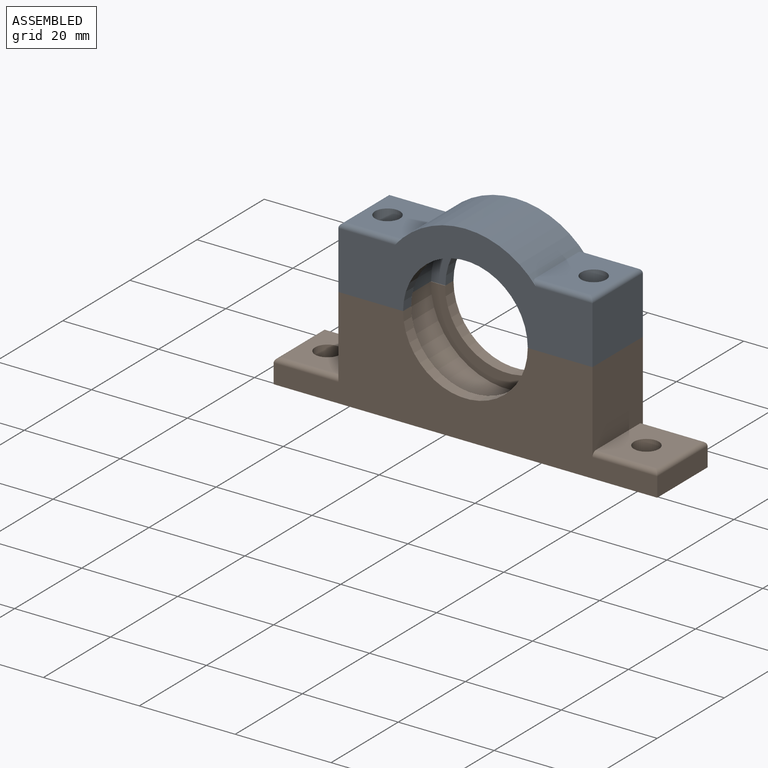
[diagram: assembled view]
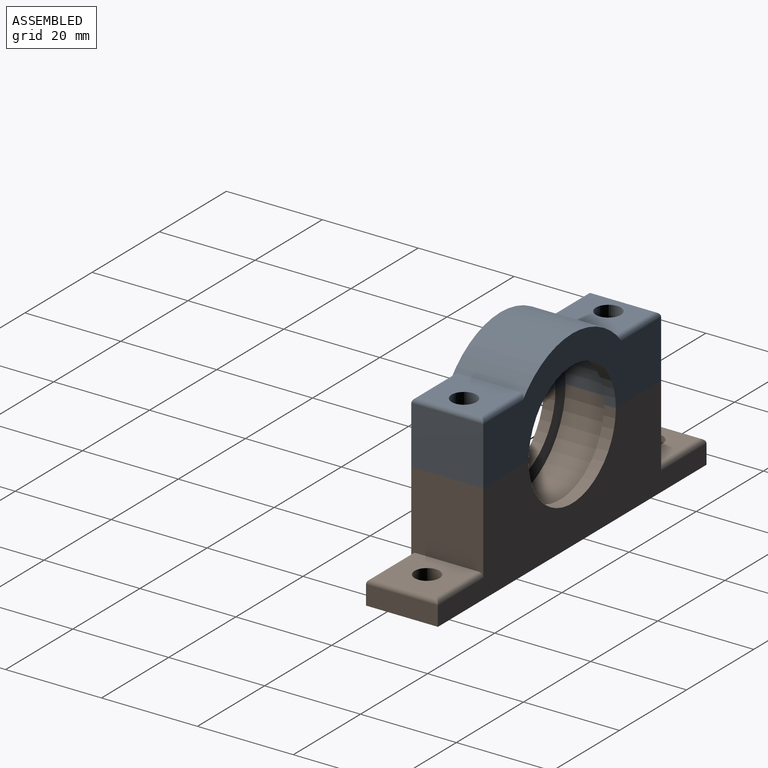
[diagram: assembled view, second angle]
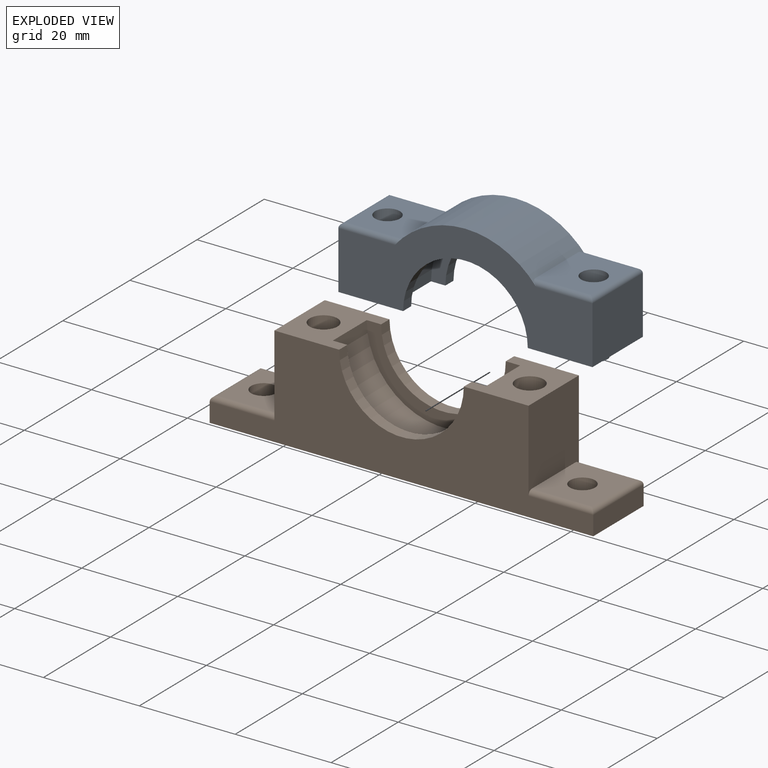
[diagram: exploded view]
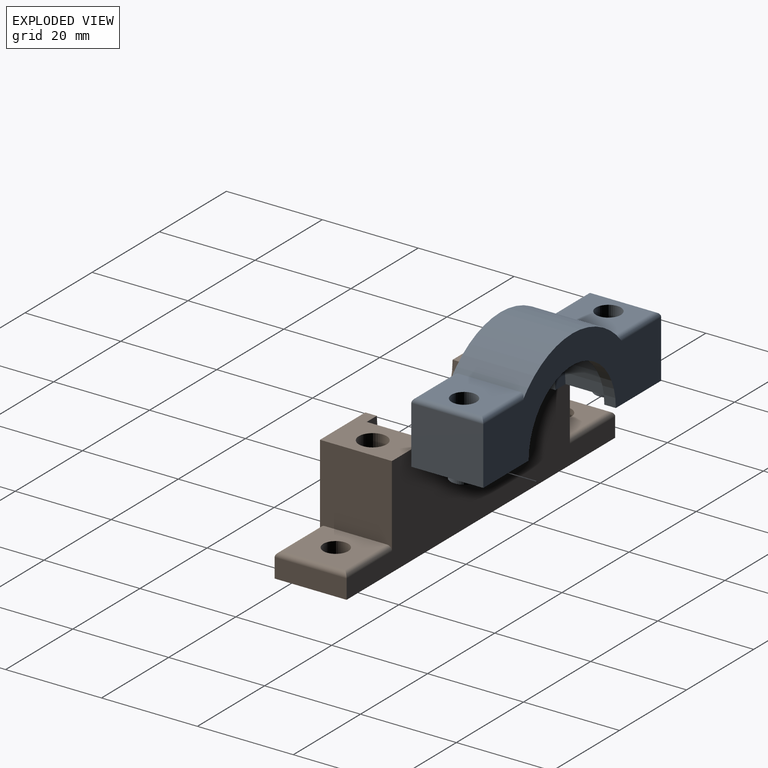
[diagram: exploded view, second angle]
ASSEMBLY  parts=2 mates=2
PART A: 26 faces, bbox 53x15x21 mm
  f0: plane 15x13.5mm, normal (0,0,-1), area 147.3mm2, adj f1,f2,f8,f9,f10,f11,f12,f13
  f1: plane 15x12mm, normal (-1,0,0), area 180mm2, adj f0,f8,f9,f25
  f2: cylinder r=13mm len=26mm, axis (0,-1,0), area 98mm2, adj f0,f3,f8,f11
  f3: plane 15x13.5mm, normal (0,0,-1), area 147.3mm2, adj f2,f4,f8,f9,f10,f11,f12,f13
  f4: plane 15x12mm, normal (1,0,0), area 180mm2, adj f3,f8,f9,f22
  f5: plane 13x11.64mm, normal (0,0,1), area 130.1mm2, adj f6,f15,f20,f21,f22
  f6: cylinder r=19mm len=29.46mm, axis (0,-1,0), area 467mm2, adj f5,f7,f8,f9,f20,f21,f23,f24
  f7: plane 13x11.64mm, normal (0,0,1), area 130.1mm2, adj f6,f14,f23,f24,f25
  f8: plane 53x19mm, normal (0,1,0), area 514mm2, adj f0,f1,f2,f3,f4,f6,f20,f23
  f9: plane 53x19mm, normal (0,-1,0), area 514mm2, adj f0,f1,f3,f4,f6,f12,f21,f24
  f10: cylinder r=16mm len=32mm, axis (0,-1,0), area 512.7mm2, adj f0,f3,f11,f13
  f11: plane 32x16mm, normal (0,-1,0), area 136.7mm2, adj f0,f2,f3,f10
  f12: cylinder r=13mm len=26mm, axis (0,-1,0), area 98mm2, adj f0,f3,f9,f13
  f13: plane 32x16mm, normal (0,1,0), area 136.7mm2, adj f0,f3,f10,f12
  f14: cylinder r=2.6mm len=15mm, axis (0,0,-1), area 245mm2, adj f7,f17
  f15: cylinder r=2.6mm len=15mm, axis (0,0,-1), area 245mm2, adj f5,f19
  f16: cylinder r=2.8mm len=5.6mm, axis (0,0,1), area 35.2mm2, adj f0,f17
  f17: plane 5.6x5.6mm, normal (0,0,-1), area 3.4mm2, adj f14,f16
  f18: cylinder r=2.8mm len=5.6mm, axis (0,0,1), area 35.2mm2, adj f3,f19
  f19: plane 5.6x5.6mm, normal (0,0,-1), area 3.4mm2, adj f15,f18
  f20: cylinder r=1mm len=12.64mm, axis (1,0,0), area 18.8mm2, adj f5,f6,f8,f22
  f21: cylinder r=1mm len=12.64mm, axis (-1,0,0), area 18.8mm2, adj f5,f6,f9,f22
  f22: cylinder r=1mm len=15mm, axis (0,1,0), area 22.4mm2, adj f4,f5,f20,f21
  f23: cylinder r=1mm len=12.64mm, axis (1,0,0), area 18.8mm2, adj f6,f7,f8,f25
  f24: cylinder r=1mm len=12.64mm, axis (-1,0,0), area 18.8mm2, adj f6,f7,f9,f25
  f25: cylinder r=1mm len=15mm, axis (0,-1,0), area 22.4mm2, adj f1,f7,f23,f24
PART B: 44 faces, bbox 21x15x80 mm
  f0: cylinder r=2.6mm len=13.8mm, axis (-1,0,0), area 225.4mm2, adj f33,f41
  f1: cylinder r=2.6mm len=13.8mm, axis (-1,0,0), area 225.4mm2, adj f26,f43
  f2: plane 17x15mm, normal (0,0,1), area 240.4mm2, adj f3,f11,f12,f13,f34,f35
  f3: plane 13x12.5mm, normal (1,0,0), area 141.3mm2, adj f2,f15,f34,f35,f36
  f4: plane 15x4mm, normal (0,0,1), area 60mm2, adj f5,f12,f13,f36
  f5: plane 80x15mm, normal (-1,0,0), area 1046.7mm2, adj f4,f6,f12,f13,f14,f15,f20,f21
  f6: plane 15x4mm, normal (0,0,-1), area 60mm2, adj f5,f12,f13,f39
  f7: plane 13x12.5mm, normal (1,0,0), area 141.3mm2, adj f8,f14,f37,f38,f39
  f8: plane 17x15mm, normal (0,0,-1), area 240.4mm2, adj f7,f9,f12,f13,f37,f38
  f9: plane 15x13.5mm, normal (1,0,0), area 145.8mm2, adj f8,f10,f12,f13,f16,f17,f18,f19
  f10: cylinder r=13mm len=26mm, axis (0,-1,0), area 102.1mm2, adj f9,f11,f12,f17
  f11: plane 15x13.5mm, normal (1,0,0), area 145.8mm2, adj f2,f10,f12,f13,f16,f17,f18,f19
  f12: plane 80x21mm, normal (0,1,0), area 955.5mm2, adj f2,f4,f5,f6,f8,f9,f10,f11
  f13: plane 80x21mm, normal (0,-1,0), area 955.5mm2, adj f2,f4,f5,f6,f8,f9,f11,f18
  f14: cylinder r=2.6mm len=5.2mm, axis (-1,0,0), area 81.7mm2, adj f5,f7
  f15: cylinder r=2.6mm len=5.2mm, axis (-1,0,0), area 81.7mm2, adj f3,f5
  f16: cylinder r=16mm len=32mm, axis (0,-1,0), area 507.7mm2, adj f9,f11,f17,f19
  f17: plane 32x16mm, normal (0,-1,0), area 136.7mm2, adj f9,f10,f11,f16
  f18: cylinder r=13mm len=26mm, axis (0,-1,0), area 98mm2, adj f9,f11,f13,f19
  f19: plane 32x16mm, normal (0,1,0), area 136.7mm2, adj f9,f11,f16,f18
  f20: plane 4.2x4.02mm, normal (0,0.87,0.49), area 19.4mm2, adj f5,f21,f25,f26
  f21: plane 4.2x3.98mm, normal (0,0.86,-0.51), area 19.4mm2, adj f5,f20,f22,f26
  f22: plane 4.62x4.2mm, normal (0,-0.01,-1), area 19.4mm2, adj f5,f21,f23,f26
  f23: plane 4.2x4.02mm, normal (0,-0.87,-0.49), area 19.4mm2, adj f5,f22,f24,f26
  f24: plane 4.2x3.98mm, normal (0,-0.86,0.51), area 19.4mm2, adj f5,f23,f25,f26
  f25: plane 4.62x4.2mm, normal (0,0.01,1), area 19.4mm2, adj f5,f20,f24,f26
  f26: plane 9.24x8.04mm, normal (-1,0,0), area 34.2mm2, adj f1,f20,f21,f22,f23,f24,f25
  f27: plane 4.2x4.02mm, normal (0,0.87,0.49), area 19.4mm2, adj f5,f28,f32,f33
  f28: plane 4.2x3.98mm, normal (0,0.86,-0.51), area 19.4mm2, adj f5,f27,f29,f33
  f29: plane 4.62x4.2mm, normal (0,-0.01,-1), area 19.4mm2, adj f5,f28,f30,f33
  f30: plane 4.2x4.02mm, normal (0,-0.87,-0.49), area 19.4mm2, adj f5,f29,f31,f33
  f31: plane 4.2x3.98mm, normal (0,-0.86,0.51), area 19.4mm2, adj f5,f30,f32,f33
  f32: plane 4.62x4.2mm, normal (0,0.01,1), area 19.4mm2, adj f5,f27,f31,f33
  f33: plane 9.24x8.04mm, normal (-1,0,0), area 34.2mm2, adj f0,f27,f28,f29,f30,f31,f32
  f34: cylinder r=1mm len=13.5mm, axis (0,0,-1), area 20.6mm2, adj f2,f3,f12,f36
  f35: cylinder r=1mm len=13.5mm, axis (0,0,1), area 20.6mm2, adj f2,f3,f13,f36
  f36: cylinder r=1mm len=15mm, axis (0,-1,0), area 22.4mm2, adj f3,f4,f34,f35
  f37: cylinder r=1mm len=13.5mm, axis (0,0,-1), area 20.6mm2, adj f7,f8,f12,f39
  f38: cylinder r=1mm len=13.5mm, axis (0,0,1), area 20.6mm2, adj f7,f8,f13,f39
  f39: cylinder r=1mm len=15mm, axis (0,-1,0), area 22.4mm2, adj f6,f7,f37,f38
  f40: cylinder r=2.9mm len=5.8mm, axis (1,0,0), area 54.7mm2, adj f11,f41
  f41: plane 5.8x5.8mm, normal (1,0,0), area 5.2mm2, adj f0,f40
  f42: cylinder r=2.9mm len=5.8mm, axis (1,0,0), area 54.7mm2, adj f9,f43
  f43: plane 5.8x5.8mm, normal (1,0,0), area 5.2mm2, adj f1,f42
PLACE A t=(25.9,-22.72,-5.53)mm
PLACE B rot(axis=(0,-1,0),90deg) t=(25.9,-22.72,-26.53)mm
MATE parallel A.f9 <-> A.f9  axis (0,-1,0) through (25.9,-22.72,3.19)mm
MATE slider B.f10 <-> A.f2  axis (0,-1,0) through (25.9,-22.72,-5.53)mm
